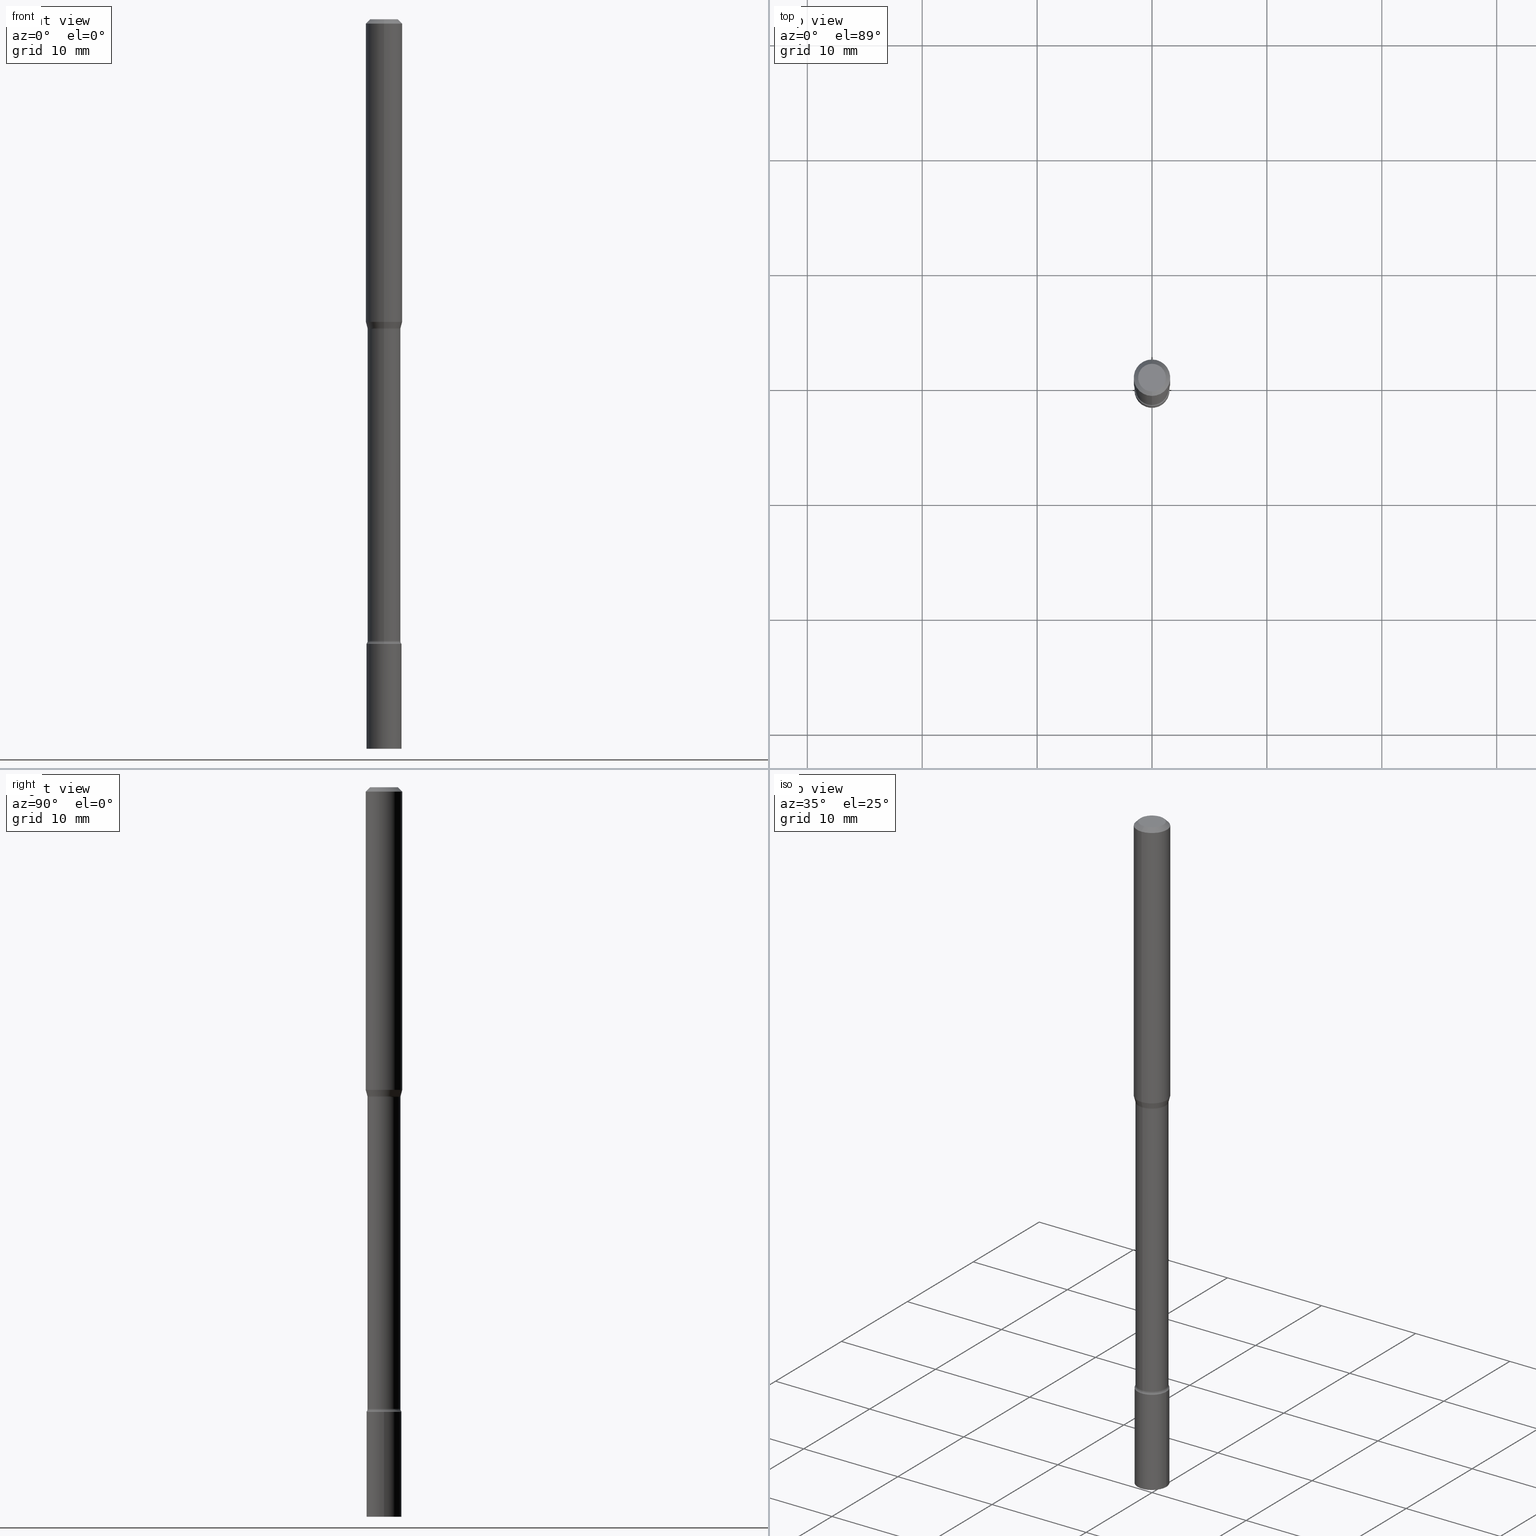
[diagram: canonical four-view strip — front | top / right | iso, engineering-drawing reading convention]
A machine part, canonical four-view strip (front | top / right | iso — engineering-drawing reading convention). The complete STEP part file that produces these views, byte-faithful:
ISO-10303-21;
HEADER;
FILE_DESCRIPTION (( 'STEP AP203' ),
    '1' );
FILE_NAME ('09404.STEP',
    '2024-03-08T23:46:08',
    ( '' ),
    ( '' ),
    'SwSTEP 2.0',
    'SolidWorks 2023',
    '' );
FILE_SCHEMA (( 'CONFIG_CONTROL_DESIGN' ));
ENDSEC;

DATA;
#1 = DIRECTION ( 'NONE',  ( -6.982962677686265922E-15, -1.000000000000000000, 2.421851058212999609E-15 ) ) ;
#2 = CIRCLE ( 'NONE', #297, 0.06250000000000000000 ) ;
#3 = CARTESIAN_POINT ( 'NONE',  ( -3.974081752709260600E-16, -0.05691111260566767555, -1.058092501787273321 ) ) ;
#4 = ORIENTED_EDGE ( 'NONE', *, *, #98, .T. ) ;
#5 = APPROVAL ( #193, 'UNSPECIFIED' ) ;
#6 = CARTESIAN_POINT ( 'NONE',  ( -0.05999999999999999778, -7.673911064660037924E-15, -2.140000000000000124 ) ) ;
#7 = VERTEX_POINT ( 'NONE', #384 ) ;
#8 = CARTESIAN_POINT ( 'NONE',  ( 7.070326966150357114E-46, -1.009475623099496898E-31, -2.891223959329334468E-17 ) ) ;
#9 = ORIENTED_EDGE ( 'NONE', *, *, #40, .F. ) ;
#10 = EDGE_CURVE ( 'NONE', #469, #104, #514, .T. ) ;
#11 = DIRECTION ( 'NONE',  ( -6.982962677686265922E-15, -1.000000000000000000, 2.400100673301878656E-15 ) ) ;
#12 = EDGE_LOOP ( 'NONE', ( #413, #180, #369, #170 ) ) ;
#13 = CIRCLE ( 'NONE', #146, 0.05640000000000008201 ) ;
#14 = DIRECTION ( 'NONE',  ( -2.445444235938896917E-29, 3.491516524834212024E-15, 1.000000000000000000 ) ) ;
#15 = ORIENTED_EDGE ( 'NONE', *, *, #465, .F. ) ;
#16 = DIRECTION ( 'NONE',  ( -6.982962677686265922E-15, -1.000000000000000000, 3.491516524834212024E-15 ) ) ;
#17 = CARTESIAN_POINT ( 'NONE',  ( 0.000000000000000000, 0.000000000000000000, 0.000000000000000000 ) ) ;
#18 = CARTESIAN_POINT ( 'NONE',  ( -4.985835351867734320E-16, -0.07140000000000369662, -1.061974787463811021 ) ) ;
#19 = VECTOR ( 'NONE', #274, 39.37007874015748143 ) ;
#20 = EDGE_CURVE ( 'NONE', #497, #224, #244, .T. ) ;
#21 = CARTESIAN_POINT ( 'NONE',  ( -4.189777606611237800E-16, -0.06000000000000750566, -2.139999999999999680 ) ) ;
#22 = EDGE_LOOP ( 'NONE', ( #443, #485, #92, #466 ) ) ;
#23 = CARTESIAN_POINT ( 'NONE',  ( -3.773273898774340269E-16, -0.04749999999999999362, 1.369347953363317225E-16 ) ) ;
#24 = VERTEX_POINT ( 'NONE', #423 ) ;
#25 = ADVANCED_FACE ( 'NONE', ( #265 ), #390, .F. ) ;
#26 = DIRECTION ( 'NONE',  ( -6.982962677686265922E-15, -1.000000000000000000, 2.400100673301878656E-15 ) ) ;
#27 = TOROIDAL_SURFACE ( 'NONE', #201, 0.07139999999999999125, 0.01499999999999998557 ) ;
#28 = AXIS2_PLACEMENT_3D ( 'NONE', #54, #14, #426 ) ;
#29 = DIRECTION ( 'NONE',  ( -6.982962677686266711E-15, -1.000000000000000000, 0.000000000000000000 ) ) ;
#30 = CALENDAR_DATE ( 2024, 8, 3 ) ;
#31 = DIRECTION ( 'NONE',  ( 2.438088387897960049E-29, -3.491481338843145188E-15, -1.000000000000000000 ) ) ;
#32 = EDGE_CURVE ( 'NONE', #489, #428, #461, .T. ) ;
#33 = PERSON_AND_ORGANIZATION ( #380, #246 ) ;
#34 = CARTESIAN_POINT ( 'NONE',  ( 6.113672015462842613E-29, -8.728703347107864943E-15, -2.500000000000000000 ) ) ;
#35 = PERSON_AND_ORGANIZATION ( #380, #246 ) ;
#36 = AXIS2_PLACEMENT_3D ( 'NONE', #383, #183, #93 ) ;
#37 = DIRECTION ( 'NONE',  ( -2.445468806185136597E-29, 3.491481338843145583E-15, 1.000000000000000000 ) ) ;
#38 = LINE ( 'NONE', #80, #219 ) ;
#39 = DIRECTION ( 'NONE',  ( -2.445468806185136597E-29, 3.491481338843145583E-15, 1.000000000000000000 ) ) ;
#40 = EDGE_CURVE ( 'NONE', #206, #326, #154, .T. ) ;
#41 = ORIENTED_EDGE ( 'NONE', *, *, #151, .F. ) ;
#42 = AXIS2_PLACEMENT_3D ( 'NONE', #488, #412, #1 ) ;
#43 = DIRECTION ( 'NONE',  ( -2.445444235938896917E-29, 3.491516524834212024E-15, 1.000000000000000000 ) ) ;
#44 = APPROVAL_PERSON_ORGANIZATION ( #391, #440, #148 ) ;
#45 = EDGE_LOOP ( 'NONE', ( #60, #203 ) ) ;
#46 = CARTESIAN_POINT ( 'NONE',  ( 5.233303245236192586E-29, -7.471770065124331886E-15, -2.140000000000000124 ) ) ;
#47 = ORIENTED_EDGE ( 'NONE', *, *, #299, .T. ) ;
#48 = EDGE_CURVE ( 'NONE', #457, #104, #502, .T. ) ;
#49 = CARTESIAN_POINT ( 'NONE',  ( 3.668166353908352803E-31, -5.237274787251328908E-17, -0.01500000000000003067 ) ) ;
#50 = EDGE_LOOP ( 'NONE', ( #487, #158, #47, #192 ) ) ;
#51 = DIRECTION ( 'NONE',  ( -2.445444235938896917E-29, 3.491516524834212024E-15, 1.000000000000000000 ) ) ;
#52 = VECTOR ( 'NONE', #153, 39.37007874015748143 ) ;
#53 = ORIENTED_EDGE ( 'NONE', *, *, #20, .T. ) ;
#54 = CARTESIAN_POINT ( 'NONE',  ( 2.536499105068069007E-29, -3.621521362220765207E-15, -1.037234490073830173 ) ) ;
#55 = ORIENTED_EDGE ( 'NONE', *, *, #195, .T. ) ;
#56 = PRODUCT_RELATED_PRODUCT_CATEGORY ( 'detail', '', ( #374 ) ) ;
#57 = DIRECTION ( 'NONE',  ( -2.445444235938896917E-29, 3.491516524834212024E-15, 1.000000000000000000 ) ) ;
#58 = MECHANICAL_CONTEXT ( 'NONE', #362, 'mechanical' ) ;
#59 = TOROIDAL_SURFACE ( 'NONE', #36, 0.07139999999999999125, 0.01499999999999998557 ) ;
#60 = ORIENTED_EDGE ( 'NONE', *, *, #352, .T. ) ;
#61 = CLOSED_SHELL ( 'NONE', ( #204, #458, #377, #114 ) ) ;
#62 = CONICAL_SURFACE ( 'NONE', #84, 0.06250000000000000000, 0.7853981633974483900 ) ;
#63 = PLANE ( 'NONE',  #363 ) ;
#64 = DIRECTION ( 'NONE',  ( -6.982962677686265922E-15, -1.000000000000000000, 4.553079989440439092E-15 ) ) ;
#65 = ADVANCED_FACE ( 'NONE', ( #143 ), #504, .T. ) ;
#66 = COORDINATED_UNIVERSAL_TIME_OFFSET ( 5, 0, .BEHIND. ) ;
#67 = CARTESIAN_POINT ( 'NONE',  ( 3.668166353908352803E-31, -5.237274787251328908E-17, -0.01500000000000003067 ) ) ;
#68 = CARTESIAN_POINT ( 'NONE',  ( 0.000000000000000000, 0.000000000000000000, 0.000000000000000000 ) ) ;
#69 = CIRCLE ( 'NONE', #425, 0.05999999999999999778 ) ;
#70 = PERSON_AND_ORGANIZATION_ROLE ( 'design_supplier' ) ;
#71 = CARTESIAN_POINT ( 'NONE',  ( 2.587506209585854859E-29, -3.694347454793438580E-15, -1.058092501787273321 ) ) ;
#72 = LINE ( 'NONE', #74, #52 ) ;
#73 = PERSON_AND_ORGANIZATION_ROLE ( 'creator' ) ;
#74 = CARTESIAN_POINT ( 'NONE',  ( -0.05999999999999999778, 4.263256414560600957E-16, -2.951361054152943413E-30 ) ) ;
#75 = CIRCLE ( 'NONE', #432, 0.05691111260566398405 ) ;
#76 = VECTOR ( 'NONE', #186, 39.37007874015748143 ) ;
#77 = CC_DESIGN_APPROVAL ( #440, ( #288 ) ) ;
#78 = FACE_OUTER_BOUND ( 'NONE', #22, .T. ) ;
#79 = EDGE_CURVE ( 'NONE', #371, #395, #75, .T. ) ;
#80 = CARTESIAN_POINT ( 'NONE',  ( 4.440892098500625669E-16, 0.06250000000000000000, -2.182197828021382515E-16 ) ) ;
#81 = ORIENTED_EDGE ( 'NONE', *, *, #10, .F. ) ;
#82 = DIRECTION ( 'NONE',  ( -6.982962677686265133E-15, -1.000000000000000000, 3.491516524834212024E-15 ) ) ;
#83 = ORIENTED_EDGE ( 'NONE', *, *, #48, .F. ) ;
#84 = AXIS2_PLACEMENT_3D ( 'NONE', #49, #486, #120 ) ;
#85 = CYLINDRICAL_SURFACE ( 'NONE', #179, 0.05999999999999999778 ) ;
#86 = APPROVAL_PERSON_ORGANIZATION ( #35, #161, #231 ) ;
#87 = ADVANCED_FACE ( 'NONE', ( #99 ), #379, .F. ) ;
#88 = ORIENTED_EDGE ( 'NONE', *, *, #367, .T. ) ;
#89 = DIRECTION ( 'NONE',  ( -2.445444235938896917E-29, 3.491516524834212024E-15, 1.000000000000000000 ) ) ;
#90 = ORIENTED_EDGE ( 'NONE', *, *, #181, .F. ) ;
#91 = CARTESIAN_POINT ( 'NONE',  ( 5.073275133327374044E-16, 0.07139999999999628588, -1.061974787463811465 ) ) ;
#92 = ORIENTED_EDGE ( 'NONE', *, *, #515, .T. ) ;
#93 = DIRECTION ( 'NONE',  ( -6.982962677686265922E-15, -1.000000000000000000, 3.491516524834212024E-15 ) ) ;
#94 = CLOSED_SHELL ( 'NONE', ( #210, #403, #260, #359, #251, #338, #233, #65, #176, #435, #87, #25, #217, #479 ) ) ;
#95 = AXIS2_PLACEMENT_3D ( 'NONE', #108, #118, #400 ) ;
#96 = DIRECTION ( 'NONE',  ( -2.445444235938896917E-29, 3.491516524834212024E-15, 1.000000000000000000 ) ) ;
#97 = CIRCLE ( 'NONE', #28, 0.06250000000000000000 ) ;
#98 = EDGE_CURVE ( 'NONE', #395, #224, #475, .T. ) ;
#99 = FACE_OUTER_BOUND ( 'NONE', #248, .T. ) ;
#100 = DIRECTION ( 'NONE',  ( 1.000000000000000000, -6.982962677686265922E-15, 4.876176775795935793E-29 ) ) ;
#101 = ORIENTED_EDGE ( 'NONE', *, *, #32, .T. ) ;
#102 = EDGE_LOOP ( 'NONE', ( #282, #407, #483, #101 ) ) ;
#103 = DIRECTION ( 'NONE',  ( -2.438088387897960049E-29, 3.491481338843145188E-15, 1.000000000000000000 ) ) ;
#104 = VERTEX_POINT ( 'NONE', #157 ) ;
#105 = EDGE_CURVE ( 'NONE', #345, #497, #271, .T. ) ;
#106 = AXIS2_PLACEMENT_3D ( 'NONE', #71, #397, #26 ) ;
#107 = DIRECTION ( 'NONE',  ( 1.000000000000000000, -6.982962677686251722E-15, 0.000000000000000000 ) ) ;
#108 = CARTESIAN_POINT ( 'NONE',  ( 0.000000000000000000, 0.000000000000000000, 0.000000000000000000 ) ) ;
#109 = SECURITY_CLASSIFICATION_LEVEL ( 'unclassified' ) ;
#110 = CYLINDRICAL_SURFACE ( 'NONE', #173, 0.06250000000000000000 ) ;
#111 = AXIS2_PLACEMENT_3D ( 'NONE', #18, #191, #29 ) ;
#112 = LOCAL_TIME ( 18, 46, 8.000000000000000000, #159 ) ;
#113 = DATE_AND_TIME ( #511, #280 ) ;
#114 = ADVANCED_FACE ( 'NONE', ( #149 ), #317, .T. ) ;
#115 = CARTESIAN_POINT ( 'NONE',  ( 4.007461029686966931E-16, 0.05640000000000004038, -1.969215320006496894E-16 ) ) ;
#116 = PERSON_AND_ORGANIZATION_ROLE ( 'classification_officer' ) ;
#117 = CARTESIAN_POINT ( 'NONE',  ( 4.043777764598219451E-16, 0.05691111260566028562, -1.058092501787273543 ) ) ;
#118 = DIRECTION ( 'NONE',  ( -2.445444235938896917E-29, 3.491516524834212024E-15, 1.000000000000000000 ) ) ;
#119 = EDGE_CURVE ( 'NONE', #375, #469, #507, .T. ) ;
#120 = DIRECTION ( 'NONE',  ( 6.982962677686265922E-15, 1.000000000000000000, -3.483106191921935554E-15 ) ) ;
#121 = ORIENTED_EDGE ( 'NONE', *, *, #142, .T. ) ;
#122 = DIRECTION ( 'NONE',  ( 1.000000000000000000, -6.982962677686267499E-15, 4.876176775795936353E-29 ) ) ;
#123 = EDGE_LOOP ( 'NONE', ( #83, #500, #361, #137 ) ) ;
#124 = EDGE_CURVE ( 'NONE', #495, #224, #150, .T. ) ;
#125 = CARTESIAN_POINT ( 'NONE',  ( 5.233250664909240003E-29, -7.471845363145214624E-15, -2.140000000000000124 ) ) ;
#126 = ORIENTED_EDGE ( 'NONE', *, *, #105, .F. ) ;
#127 = AXIS2_PLACEMENT_3D ( 'NONE', #46, #198, #290 ) ;
#128 = DIRECTION ( 'NONE',  ( -2.445444235938896917E-29, 3.491516524834212024E-15, 1.000000000000000000 ) ) ;
#129 = ORIENTED_EDGE ( 'NONE', *, *, #309, .F. ) ;
#130 = CARTESIAN_POINT ( 'NONE',  ( 3.840629472727447874E-16, 0.04749999999999999362, -1.947592745229184119E-16 ) ) ;
#131 = ORIENTED_EDGE ( 'NONE', *, *, #181, .T. ) ;
#132 = CARTESIAN_POINT ( 'NONE',  ( 2.587506209585854859E-29, -3.694347454793438580E-15, -1.058092501787273321 ) ) ;
#133 = EDGE_LOOP ( 'NONE', ( #243, #303, #53, #240 ) ) ;
#134 = EDGE_CURVE ( 'NONE', #250, #104, #512, .T. ) ;
#135 = DIMENSIONAL_EXPONENTS ( 1.000000000000000000, 0.000000000000000000, 0.000000000000000000, 0.000000000000000000, 0.000000000000000000, 0.000000000000000000, 0.000000000000000000 ) ;
#136 = CIRCLE ( 'NONE', #498, 0.01499999999999998557 ) ;
#137 = ORIENTED_EDGE ( 'NONE', *, *, #10, .T. ) ;
#138 =( LENGTH_UNIT ( ) NAMED_UNIT ( * ) SI_UNIT ( $, .METRE. ) );
#139 = ORIENTED_EDGE ( 'NONE', *, *, #275, .F. ) ;
#140 = ORIENTED_EDGE ( 'NONE', *, *, #465, .T. ) ;
#141 = CARTESIAN_POINT ( 'NONE',  ( 5.209410405442243342E-29, -7.437807105939404546E-15, -2.130251153914437090 ) ) ;
#142 = EDGE_CURVE ( 'NONE', #206, #264, #72, .T. ) ;
#143 = FACE_OUTER_BOUND ( 'NONE', #422, .T. ) ;
#144 = DIRECTION ( 'NONE',  ( -6.982962677686265922E-15, -1.000000000000000000, 2.400100673301878656E-15 ) ) ;
#145 = DIRECTION ( 'NONE',  ( -6.982962677686265922E-15, -1.000000000000000000, 3.491516524834212024E-15 ) ) ;
#146 = AXIS2_PLACEMENT_3D ( 'NONE', #365, #169, #358 ) ;
#147 = AXIS2_PLACEMENT_3D ( 'NONE', #376, #103, #100 ) ;
#148 = APPROVAL_ROLE ( '' ) ;
#149 = FACE_OUTER_BOUND ( 'NONE', #163, .T. ) ;
#150 = LINE ( 'NONE', #351, #165 ) ;
#151 = EDGE_CURVE ( 'NONE', #250, #24, #381, .T. ) ;
#152 = CALENDAR_DATE ( 2024, 8, 3 ) ;
#153 = DIRECTION ( 'NONE',  ( -2.445468806185136877E-29, 3.491481338843145188E-15, 1.000000000000000000 ) ) ;
#154 = CIRCLE ( 'NONE', #226, 0.05999999999999999778 ) ;
#155 = CIRCLE ( 'NONE', #209, 0.05999999999999999778 ) ;
#156 = CIRCLE ( 'NONE', #364, 0.05640000000000008201 ) ;
#157 = CARTESIAN_POINT ( 'NONE',  ( -4.364351673553912750E-16, -0.06250000000000005551, -0.01499999999999981209 ) ) ;
#158 = ORIENTED_EDGE ( 'NONE', *, *, #40, .T. ) ;
#159 = COORDINATED_UNIVERSAL_TIME_OFFSET ( 5, 0, .BEHIND. ) ;
#160 = CARTESIAN_POINT ( 'NONE',  ( 2.536499105068069007E-29, -3.621521362220765207E-15, -1.037234490073830173 ) ) ;
#161 = APPROVAL ( #433, 'UNSPECIFIED' ) ;
#162 = FACE_OUTER_BOUND ( 'NONE', #341, .T. ) ;
#163 = EDGE_LOOP ( 'NONE', ( #90, #9 ) ) ;
#164 = AXIS2_PLACEMENT_3D ( 'NONE', #460, #96, #145 ) ;
#165 = VECTOR ( 'NONE', #319, 39.37007874015748143 ) ;
#166 = CC_DESIGN_APPROVAL ( #161, ( #242 ) ) ;
#167 = FACE_OUTER_BOUND ( 'NONE', #455, .T. ) ;
#168 = ORIENTED_EDGE ( 'NONE', *, *, #508, .T. ) ;
#169 = DIRECTION ( 'NONE',  ( -2.445444235938896917E-29, 3.491516524834212024E-15, 1.000000000000000000 ) ) ;
#170 = ORIENTED_EDGE ( 'NONE', *, *, #134, .F. ) ;
#171 = CARTESIAN_POINT ( 'NONE',  ( 2.587506209585854859E-29, -3.694347454793438580E-15, -1.058092501787273321 ) ) ;
#172 = EDGE_LOOP ( 'NONE', ( #15, #88, #182, #139 ) ) ;
#173 = AXIS2_PLACEMENT_3D ( 'NONE', #68, #227, #349 ) ;
#174 = CARTESIAN_POINT ( 'NONE',  ( 5.209462746237647655E-29, -7.437732150941334184E-15, -2.130251153914437090 ) ) ;
#175 = ORIENTED_EDGE ( 'NONE', *, *, #134, .T. ) ;
#176 = ADVANCED_FACE ( 'NONE', ( #311 ), #279, .T. ) ;
#177 = ORIENTED_EDGE ( 'NONE', *, *, #119, .F. ) ;
#178 = CARTESIAN_POINT ( 'NONE',  ( 2.587506209585854859E-29, -3.694347454793438580E-15, -1.058092501787273321 ) ) ;
#179 = AXIS2_PLACEMENT_3D ( 'NONE', #456, #39, #122 ) ;
#180 = ORIENTED_EDGE ( 'NONE', *, *, #266, .T. ) ;
#181 = EDGE_CURVE ( 'NONE', #326, #206, #155, .T. ) ;
#182 = ORIENTED_EDGE ( 'NONE', *, *, #424, .T. ) ;
#183 = DIRECTION ( 'NONE',  ( -2.445444235938896917E-29, 3.491516524834212024E-15, 1.000000000000000000 ) ) ;
#184 = CARTESIAN_POINT ( 'NONE',  ( 5.233250664909240003E-29, -7.471845363145214624E-15, -2.140000000000000124 ) ) ;
#185 = DATE_TIME_ROLE ( 'creation_date' ) ;
#186 = DIRECTION ( 'NONE',  ( -2.445444235938896917E-29, 3.491516524834212024E-15, 1.000000000000000000 ) ) ;
#187 = CIRCLE ( 'NONE', #236, 0.05999999999999999778 ) ;
#188 = CC_DESIGN_SECURITY_CLASSIFICATION ( #228, ( #288 ) ) ;
#189 = DIRECTION ( 'NONE',  ( -2.445444235938896917E-29, 3.491516524834212024E-15, 1.000000000000000000 ) ) ;
#190 = CC_DESIGN_DATE_AND_TIME_ASSIGNMENT ( #399, #474, ( #228 ) ) ;
#191 = DIRECTION ( 'NONE',  ( -1.000000000000000000, 6.982962677686265922E-15, -4.883557194083112340E-29 ) ) ;
#192 = ORIENTED_EDGE ( 'NONE', *, *, #291, .F. ) ;
#193 = APPROVAL_STATUS ( 'not_yet_approved' ) ;
#194 = DIRECTION ( 'NONE',  ( 1.839019923739594004E-15, 0.2588190451025240701, 0.9659258262890673130 ) ) ;
#195 = EDGE_CURVE ( 'NONE', #371, #24, #394, .T. ) ;
#196 = PERSON_AND_ORGANIZATION ( #380, #246 ) ;
#197 = DIRECTION ( 'NONE',  ( -2.445444235938896917E-29, 3.491516524834212024E-15, 1.000000000000000000 ) ) ;
#198 = DIRECTION ( 'NONE',  ( -2.445468806185136597E-29, 3.491481338843145583E-15, 1.000000000000000000 ) ) ;
#199 = ORIENTED_EDGE ( 'NONE', *, *, #124, .T. ) ;
#200 = AXIS2_PLACEMENT_3D ( 'NONE', #258, #57, #216 ) ;
#201 = AXIS2_PLACEMENT_3D ( 'NONE', #389, #439, #472 ) ;
#202 = DIRECTION ( 'NONE',  ( -2.445468806185136597E-29, 3.491481338843145583E-15, 1.000000000000000000 ) ) ;
#203 = ORIENTED_EDGE ( 'NONE', *, *, #309, .T. ) ;
#204 = ADVANCED_FACE ( 'NONE', ( #313 ), #354, .T. ) ;
#205 = CYLINDRICAL_SURFACE ( 'NONE', #263, 0.05640000000000004038 ) ;
#206 = VERTEX_POINT ( 'NONE', #518 ) ;
#207 = CARTESIAN_POINT ( 'NONE',  ( 5.233303245236192586E-29, -7.471770065124331886E-15, -2.140000000000000124 ) ) ;
#208 = ORIENTED_EDGE ( 'NONE', *, *, #124, .F. ) ;
#209 = AXIS2_PLACEMENT_3D ( 'NONE', #34, #37, #398 ) ;
#210 = ADVANCED_FACE ( 'NONE', ( #277 ), #27, .F. ) ;
#211 = CIRCLE ( 'NONE', #272, 0.04749999999999999362 ) ;
#212 = EDGE_LOOP ( 'NONE', ( #336, #287, #4, #285 ) ) ;
#213 = CARTESIAN_POINT ( 'NONE',  ( -3.974081752709260600E-16, -0.05691111260566767555, -1.058092501787273321 ) ) ;
#214 = DIRECTION ( 'NONE',  ( -6.982962677686265922E-15, -1.000000000000000000, 3.483106191921935554E-15 ) ) ;
#215 = CARTESIAN_POINT ( 'NONE',  ( 4.263256414561126536E-16, 0.05999999999999256622, -2.140000000000000568 ) ) ;
#216 = DIRECTION ( 'NONE',  ( -6.982962677686265922E-15, -1.000000000000000000, 3.491516524834212024E-15 ) ) ;
#217 = ADVANCED_FACE ( 'NONE', ( #235 ), #520, .T. ) ;
#218 = FACE_OUTER_BOUND ( 'NONE', #45, .T. ) ;
#219 = VECTOR ( 'NONE', #360, 39.37007874015748143 ) ;
#220 = CARTESIAN_POINT ( 'NONE',  ( -4.287811248607203282E-16, -0.06250000000000005551, -0.01499999999999981209 ) ) ;
#221 = DIRECTION ( 'NONE',  ( 1.000000000000000000, -7.105427357601001070E-15, 4.926315939446195710E-29 ) ) ;
#222 = EDGE_LOOP ( 'NONE', ( #129, #334, #327, #177 ) ) ;
#223 = PERSON_AND_ORGANIZATION_ROLE ( 'creator' ) ;
#224 = VERTEX_POINT ( 'NONE', #441 ) ;
#225 = CC_DESIGN_DATE_AND_TIME_ASSIGNMENT ( #269, #185, ( #242 ) ) ;
#226 = AXIS2_PLACEMENT_3D ( 'NONE', #257, #467, #107 ) ;
#227 = DIRECTION ( 'NONE',  ( -2.445444235938896917E-29, 3.491516524834212024E-15, 1.000000000000000000 ) ) ;
#228 = SECURITY_CLASSIFICATION ( '', '', #109 ) ;
#229 = PERSON_AND_ORGANIZATION ( #380, #246 ) ;
#230 = FACE_OUTER_BOUND ( 'NONE', #172, .T. ) ;
#231 = APPROVAL_ROLE ( '' ) ;
#232 = DIRECTION ( 'NONE',  ( 6.982962677686265922E-15, 1.000000000000000000, -3.483106191921935554E-15 ) ) ;
#233 = ADVANCED_FACE ( 'NONE', ( #78 ), #331, .T. ) ;
#234 = APPLICATION_PROTOCOL_DEFINITION ( 'international standard', 'config_control_design', 1994, #254 ) ;
#235 = FACE_OUTER_BOUND ( 'NONE', #302, .T. ) ;
#236 = AXIS2_PLACEMENT_3D ( 'NONE', #207, #202, #490 ) ;
#237 = VECTOR ( 'NONE', #496, 39.37007874015748854 ) ;
#238 = DIRECTION ( 'NONE',  ( -6.982962677686267499E-15, -1.000000000000000000, 0.000000000000000000 ) ) ;
#239 = DIRECTION ( 'NONE',  ( 1.000000000000000000, -7.105427357601001070E-15, 4.926315939446195710E-29 ) ) ;
#240 = ORIENTED_EDGE ( 'NONE', *, *, #98, .F. ) ;
#241 = LINE ( 'NONE', #446, #323 ) ;
#242 = PRODUCT_DEFINITION ( 'UNKNOWN', '', #288, #405 ) ;
#243 = ORIENTED_EDGE ( 'NONE', *, *, #79, .F. ) ;
#244 = CIRCLE ( 'NONE', #305, 0.05639999999999999181 ) ;
#245 = CIRCLE ( 'NONE', #127, 0.05999999999999999778 ) ;
#246 = ORGANIZATION ( 'UNSPECIFIED', 'UNSPECIFIED', '' ) ;
#247 = CARTESIAN_POINT ( 'NONE',  ( -4.985835351867480899E-16, -0.07140000000000755465, -2.130251153914436646 ) ) ;
#248 = EDGE_LOOP ( 'NONE', ( #449, #417 ) ) ;
#249 = DIRECTION ( 'NONE',  ( -6.982962677686265922E-15, -1.000000000000000000, 4.553079989440439092E-15 ) ) ;
#250 = VERTEX_POINT ( 'NONE', #268 ) ;
#251 = ADVANCED_FACE ( 'NONE', ( #431 ), #110, .T. ) ;
#252 = FACE_OUTER_BOUND ( 'NONE', #322, .T. ) ;
#253 = ORIENTED_EDGE ( 'NONE', *, *, #20, .F. ) ;
#254 = APPLICATION_CONTEXT ( 'configuration controlled 3d designs of mechanical parts and assemblies' ) ;
#255 = VECTOR ( 'NONE', #348, 39.37007874015748143 ) ;
#256 = CARTESIAN_POINT ( 'NONE',  ( -3.938390950214538328E-16, -0.05640000000000751357, -2.130251153914436646 ) ) ;
#257 = CARTESIAN_POINT ( 'NONE',  ( 6.113672015462842613E-29, -8.728703347107864943E-15, -2.500000000000000000 ) ) ;
#258 = CARTESIAN_POINT ( 'NONE',  ( 4.189777606612283041E-16, 0.05999999999999253153, -2.140000000000000568 ) ) ;
#259 = LINE ( 'NONE', #213, #237 ) ;
#260 = ADVANCED_FACE ( 'NONE', ( #230 ), #481, .F. ) ;
#261 = DIRECTION ( 'NONE',  ( -6.982962677686265922E-15, -1.000000000000000000, 2.421851058212999609E-15 ) ) ;
#262 = PLANE ( 'NONE',  #147 ) ;
#263 = AXIS2_PLACEMENT_3D ( 'NONE', #325, #484, #82 ) ;
#264 = VERTEX_POINT ( 'NONE', #6 ) ;
#265 = FACE_OUTER_BOUND ( 'NONE', #102, .T. ) ;
#266 = EDGE_CURVE ( 'NONE', #24, #469, #38, .T. ) ;
#267 = MANIFOLD_SOLID_BREP ( 'Body-Move/Copy2[1]', #61 ) ;
#268 = CARTESIAN_POINT ( 'NONE',  ( -4.364351673553663766E-16, -0.06250000000000363598, -1.037234490073829951 ) ) ;
#269 = DATE_AND_TIME ( #152, #112 ) ;
#270 = AXIS2_PLACEMENT_3D ( 'NONE', #184, #344, #64 ) ;
#271 = LINE ( 'NONE', #115, #255 ) ;
#272 = AXIS2_PLACEMENT_3D ( 'NONE', #8, #197, #370 ) ;
#273 = SHAPE_DEFINITION_REPRESENTATION ( #427, #452 ) ;
#274 = DIRECTION ( 'NONE',  ( 4.937700262164548042E-15, 0.7071067811865451302, -0.7071067811865499042 ) ) ;
#275 = EDGE_CURVE ( 'NONE', #495, #489, #468, .T. ) ;
#276 = APPROVAL_DATE_TIME ( #429, #440 ) ;
#277 = FACE_OUTER_BOUND ( 'NONE', #133, .T. ) ;
#278 = DIRECTION ( 'NONE',  ( 2.445444235938896917E-29, -3.491516524834212024E-15, -1.000000000000000000 ) ) ;
#279 = CONICAL_SURFACE ( 'NONE', #434, 0.06250000000000000000, 0.7853981633974483900 ) ;
#280 = LOCAL_TIME ( 18, 46, 8.000000000000000000, #516 ) ;
#281 = DIRECTION ( 'NONE',  ( -2.445444235938896917E-29, 3.491516524834212024E-15, 1.000000000000000000 ) ) ;
#282 = ORIENTED_EDGE ( 'NONE', *, *, #367, .F. ) ;
#283 = CC_DESIGN_PERSON_AND_ORGANIZATION_ASSIGNMENT ( #196, #73, ( #288 ) ) ;
#284 = DIRECTION ( 'NONE',  ( -6.982962677686266711E-15, -1.000000000000000000, 3.491516524834212419E-15 ) ) ;
#285 = ORIENTED_EDGE ( 'NONE', *, *, #314, .T. ) ;
#286 = DIRECTION ( 'NONE',  ( -2.445468806185136877E-29, 3.491481338843145188E-15, 1.000000000000000000 ) ) ;
#287 = ORIENTED_EDGE ( 'NONE', *, *, #471, .F. ) ;
#288 = PRODUCT_DEFINITION_FORMATION_WITH_SPECIFIED_SOURCE ( 'ANY', '', #374, .NOT_KNOWN. ) ;
#289 = CIRCLE ( 'NONE', #392, 0.04749999999999999362 ) ;
#290 = DIRECTION ( 'NONE',  ( 1.000000000000000000, -6.982962677686268288E-15, 0.000000000000000000 ) ) ;
#291 = EDGE_CURVE ( 'NONE', #264, #7, #187, .T. ) ;
#292 = ORIENTED_EDGE ( 'NONE', *, *, #385, .T. ) ;
#293 = FACE_OUTER_BOUND ( 'NONE', #50, .T. ) ;
#294 = ORIENTED_EDGE ( 'NONE', *, *, #299, .F. ) ;
#295 = CARTESIAN_POINT ( 'NONE',  ( 3.316907271900976096E-16, 0.04749999999999999362, -1.803031547262717396E-16 ) ) ;
#296 = DIRECTION ( 'NONE',  ( -2.445444235938896917E-29, 3.491516524834212024E-15, 1.000000000000000000 ) ) ;
#297 = AXIS2_PLACEMENT_3D ( 'NONE', #408, #43, #368 ) ;
#298 = ORIENTED_EDGE ( 'NONE', *, *, #291, .T. ) ;
#299 = EDGE_CURVE ( 'NONE', #326, #7, #241, .T. ) ;
#300 = ORIENTED_EDGE ( 'NONE', *, *, #314, .F. ) ;
#301 = DIRECTION ( 'NONE',  ( 7.105427357600997914E-15, 1.000000000000000000, 0.000000000000000000 ) ) ;
#302 = EDGE_LOOP ( 'NONE', ( #126, #140, #199, #253 ) ) ;
#303 = ORIENTED_EDGE ( 'NONE', *, *, #448, .T. ) ;
#304 =( CONVERSION_BASED_UNIT ( 'INCH', #373 ) LENGTH_UNIT ( ) NAMED_UNIT ( #135 ) );
#305 = AXIS2_PLACEMENT_3D ( 'NONE', #307, #387, #261 ) ;
#306 = AXIS2_PLACEMENT_3D ( 'NONE', #247, #442, #238 ) ;
#307 = CARTESIAN_POINT ( 'NONE',  ( 2.597000122715812178E-29, -3.707902519387197566E-15, -1.061974787463811243 ) ) ;
#308 = LOCAL_TIME ( 18, 46, 8.000000000000000000, #346 ) ;
#309 = EDGE_CURVE ( 'NONE', #457, #375, #211, .T. ) ;
#310 = CALENDAR_DATE ( 2024, 8, 3 ) ;
#311 = FACE_OUTER_BOUND ( 'NONE', #123, .T. ) ;
#312 = APPROVAL_DATE_TIME ( #113, #5 ) ;
#313 = FACE_OUTER_BOUND ( 'NONE', #415, .T. ) ;
#314 = EDGE_CURVE ( 'NONE', #224, #497, #517, .T. ) ;
#315 = DATE_AND_TIME ( #396, #451 ) ;
#316 = VECTOR ( 'NONE', #430, 39.37007874015748143 ) ;
#317 = PLANE ( 'NONE',  #339 ) ;
#318 = AXIS2_PLACEMENT_3D ( 'NONE', #470, #478, #510 ) ;
#319 = DIRECTION ( 'NONE',  ( -2.445444235938896917E-29, 3.491516524834212024E-15, 1.000000000000000000 ) ) ;
#320 = CARTESIAN_POINT ( 'NONE',  ( -4.364351673553916201E-16, -0.06250000000000000000, 2.182197828021382515E-16 ) ) ;
#321 = DIRECTION ( 'NONE',  ( -2.445444235938896917E-29, 3.491516524834212024E-15, 1.000000000000000000 ) ) ;
#322 = EDGE_LOOP ( 'NONE', ( #292, #298 ) ) ;
#323 = VECTOR ( 'NONE', #286, 39.37007874015748143 ) ;
#324 = CC_DESIGN_PERSON_AND_ORGANIZATION_ASSIGNMENT ( #33, #223, ( #242 ) ) ;
#325 = CARTESIAN_POINT ( 'NONE',  ( 0.000000000000000000, 0.000000000000000000, 0.000000000000000000 ) ) ;
#326 = VERTEX_POINT ( 'NONE', #406 ) ;
#327 = ORIENTED_EDGE ( 'NONE', *, *, #409, .T. ) ;
#328 = EDGE_CURVE ( 'NONE', #495, #345, #13, .T. ) ;
#329 = CARTESIAN_POINT ( 'NONE',  ( 4.242334931549550257E-16, 0.05691111260566028562, -1.058092501787273543 ) ) ;
#330 = ORIENTED_EDGE ( 'NONE', *, *, #328, .T. ) ;
#331 = CONICAL_SURFACE ( 'NONE', #106, 0.05691111260566398405, 0.2617993877991494078 ) ;
#332 = CC_DESIGN_APPROVAL ( #5, ( #228 ) ) ;
#333 = CARTESIAN_POINT ( 'NONE',  ( 5.073275133327644228E-16, 0.07139999999999267766, -2.130251153914437090 ) ) ;
#334 = ORIENTED_EDGE ( 'NONE', *, *, #48, .T. ) ;
#335 =( NAMED_UNIT ( * ) SI_UNIT ( $, .STERADIAN. ) SOLID_ANGLE_UNIT ( ) );
#336 = ORIENTED_EDGE ( 'NONE', *, *, #448, .F. ) ;
#337 = DIRECTION ( 'NONE',  ( -2.445444235938896917E-29, 3.491516524834212024E-15, 1.000000000000000000 ) ) ;
#338 = ADVANCED_FACE ( 'NONE', ( #162 ), #506, .T. ) ;
#339 = AXIS2_PLACEMENT_3D ( 'NONE', #437, #31, #480 ) ;
#340 = CARTESIAN_POINT ( 'NONE',  ( 4.440892098500881555E-16, 0.06249999999999995837, -0.01500000000000024751 ) ) ;
#341 = EDGE_LOOP ( 'NONE', ( #410, #55, #41, #445 ) ) ;
#342 = ORIENTED_EDGE ( 'NONE', *, *, #385, .F. ) ;
#343 = CC_DESIGN_PERSON_AND_ORGANIZATION_ASSIGNMENT ( #388, #70, ( #288 ) ) ;
#344 = DIRECTION ( 'NONE',  ( -2.445444235938896917E-29, 3.491516524834212024E-15, 1.000000000000000000 ) ) ;
#345 = VERTEX_POINT ( 'NONE', #414 ) ;
#346 = COORDINATED_UNIVERSAL_TIME_OFFSET ( 5, 0, .BEHIND. ) ;
#347 = VECTOR ( 'NONE', #194, 39.37007874015748854 ) ;
#348 = DIRECTION ( 'NONE',  ( -2.445444235938896917E-29, 3.491516524834212024E-15, 1.000000000000000000 ) ) ;
#349 = DIRECTION ( 'NONE',  ( -6.982962677686265922E-15, -1.000000000000000000, 3.491516524834212024E-15 ) ) ;
#350 = PERSON_AND_ORGANIZATION_ROLE ( 'design_owner' ) ;
#351 = CARTESIAN_POINT ( 'NONE',  ( -3.938390950215056511E-16, -0.05640000000000004038, 1.969215320006496894E-16 ) ) ;
#352 = EDGE_CURVE ( 'NONE', #375, #457, #289, .T. ) ;
#353 = APPROVAL_DATE_TIME ( #315, #161 ) ;
#354 = CYLINDRICAL_SURFACE ( 'NONE', #318, 0.05999999999999999778 ) ;
#355 = CIRCLE ( 'NONE', #505, 0.01500000000000002720 ) ;
#356 = COORDINATED_UNIVERSAL_TIME_OFFSET ( 5, 0, .BEHIND. ) ;
#357 = CARTESIAN_POINT ( 'NONE',  ( 3.668166353908352803E-31, -5.237274787251328908E-17, -0.01500000000000003067 ) ) ;
#358 = DIRECTION ( 'NONE',  ( -6.982962677686265133E-15, -1.000000000000000000, 4.843702116425991330E-15 ) ) ;
#359 = ADVANCED_FACE ( 'NONE', ( #482 ), #62, .T. ) ;
#360 = DIRECTION ( 'NONE',  ( -2.445444235938896917E-29, 3.491516524834212024E-15, 1.000000000000000000 ) ) ;
#361 = ORIENTED_EDGE ( 'NONE', *, *, #119, .T. ) ;
#362 = APPLICATION_CONTEXT ( 'configuration controlled 3d designs of mechanical parts and assemblies' ) ;
#363 = AXIS2_PLACEMENT_3D ( 'NONE', #295, #494, #459 ) ;
#364 = AXIS2_PLACEMENT_3D ( 'NONE', #141, #51, #462 ) ;
#365 = CARTESIAN_POINT ( 'NONE',  ( 5.209410405442243342E-29, -7.437807105939404546E-15, -2.130251153914437090 ) ) ;
#366 = ORIENTED_EDGE ( 'NONE', *, *, #105, .T. ) ;
#367 = EDGE_CURVE ( 'NONE', #345, #428, #355, .T. ) ;
#368 = DIRECTION ( 'NONE',  ( -6.982962677686265922E-15, -1.000000000000000000, 3.483106191921935554E-15 ) ) ;
#369 = ORIENTED_EDGE ( 'NONE', *, *, #409, .F. ) ;
#370 = DIRECTION ( 'NONE',  ( -6.982962677686266711E-15, -1.000000000000000000, 3.491516524834212419E-15 ) ) ;
#371 = VERTEX_POINT ( 'NONE', #329 ) ;
#372 = AXIS2_PLACEMENT_3D ( 'NONE', #420, #378, #16 ) ;
#373 = LENGTH_MEASURE_WITH_UNIT ( LENGTH_MEASURE( 0.02539999999999999897 ), #138 );
#374 = PRODUCT ( '09404', '09404', '', ( #58 ) ) ;
#375 = VERTEX_POINT ( 'NONE', #130 ) ;
#376 = CARTESIAN_POINT ( 'NONE',  ( 5.233303245236192586E-29, -7.471770065124331886E-15, -2.140000000000000124 ) ) ;
#377 = ADVANCED_FACE ( 'NONE', ( #293 ), #85, .T. ) ;
#378 = DIRECTION ( 'NONE',  ( -2.445444235938896917E-29, 3.491516524834212024E-15, 1.000000000000000000 ) ) ;
#379 = PLANE ( 'NONE',  #200 ) ;
#380 = PERSON ( 'UNSPECIFIED', 'UNSPECIFIED', 'UNSPECIFIED', ('UNSPECIFIED'), ('UNSPECIFIED'), ('UNSPECIFIED') ) ;
#381 = CIRCLE ( 'NONE', #401, 0.06250000000000000000 ) ;
#382 = LOCAL_TIME ( 18, 46, 8.000000000000000000, #356 ) ;
#383 = CARTESIAN_POINT ( 'NONE',  ( 2.597026215697840681E-29, -3.707865152751812807E-15, -1.061974787463811243 ) ) ;
#384 = CARTESIAN_POINT ( 'NONE',  ( 0.05999999999999999778, -7.890747825785508520E-15, -2.140000000000000124 ) ) ;
#385 = EDGE_CURVE ( 'NONE', #7, #264, #245, .T. ) ;
#386 = FACE_OUTER_BOUND ( 'NONE', #212, .T. ) ;
#387 = DIRECTION ( 'NONE',  ( -2.445444235938896917E-29, 3.491516524834212024E-15, 1.000000000000000000 ) ) ;
#388 = PERSON_AND_ORGANIZATION ( #380, #246 ) ;
#389 = CARTESIAN_POINT ( 'NONE',  ( 2.597026215697840681E-29, -3.707865152751812807E-15, -1.061974787463811243 ) ) ;
#390 = TOROIDAL_SURFACE ( 'NONE', #164, 0.07140000000000011615, 0.01500000000000003414 ) ;
#391 = PERSON_AND_ORGANIZATION ( #380, #246 ) ;
#392 = AXIS2_PLACEMENT_3D ( 'NONE', #444, #128, #284 ) ;
#393 =( GEOMETRIC_REPRESENTATION_CONTEXT ( 3 ) GLOBAL_UNCERTAINTY_ASSIGNED_CONTEXT ( ( #493 ) ) GLOBAL_UNIT_ASSIGNED_CONTEXT ( ( #304, #503, #335 ) ) REPRESENTATION_CONTEXT ( 'NONE', 'WORKASPACE' ) );
#394 = LINE ( 'NONE', #117, #347 ) ;
#395 = VERTEX_POINT ( 'NONE', #3 ) ;
#396 = CALENDAR_DATE ( 2024, 8, 3 ) ;
#397 = DIRECTION ( 'NONE',  ( -2.445444235938896917E-29, 3.491516524834212024E-15, 1.000000000000000000 ) ) ;
#398 = DIRECTION ( 'NONE',  ( 1.000000000000000000, -6.982962677686251722E-15, 0.000000000000000000 ) ) ;
#399 = DATE_AND_TIME ( #30, #382 ) ;
#400 = DIRECTION ( 'NONE',  ( -6.982962677686265133E-15, -1.000000000000000000, 3.491516524834212024E-15 ) ) ;
#401 = AXIS2_PLACEMENT_3D ( 'NONE', #160, #189, #436 ) ;
#402 = AXIS2_PLACEMENT_3D ( 'NONE', #132, #416, #144 ) ;
#403 = ADVANCED_FACE ( 'NONE', ( #167 ), #205, .T. ) ;
#404 = DIRECTION ( 'NONE',  ( -6.982962677686265922E-15, -1.000000000000000000, 3.491516524834212024E-15 ) ) ;
#405 = DESIGN_CONTEXT ( 'detailed design', #254, 'design' ) ;
#406 = CARTESIAN_POINT ( 'NONE',  ( 0.05999999999999999778, -9.147681107769039999E-15, -2.500000000000000000 ) ) ;
#407 = ORIENTED_EDGE ( 'NONE', *, *, #328, .F. ) ;
#408 = CARTESIAN_POINT ( 'NONE',  ( 3.668166353908352803E-31, -5.237274787251328908E-17, -0.01500000000000003067 ) ) ;
#409 = EDGE_CURVE ( 'NONE', #104, #469, #2, .T. ) ;
#410 = ORIENTED_EDGE ( 'NONE', *, *, #471, .T. ) ;
#411 = AXIS2_PLACEMENT_3D ( 'NONE', #171, #321, #11 ) ;
#412 = DIRECTION ( 'NONE',  ( -2.445444235938896917E-29, 3.491516524834212024E-15, 1.000000000000000000 ) ) ;
#413 = ORIENTED_EDGE ( 'NONE', *, *, #151, .T. ) ;
#414 = CARTESIAN_POINT ( 'NONE',  ( 4.135358722124309276E-16, 0.05639999999999264352, -2.130251153914437090 ) ) ;
#415 = EDGE_LOOP ( 'NONE', ( #131, #121, #342, #294 ) ) ;
#416 = DIRECTION ( 'NONE',  ( -2.445444235938896917E-29, 3.491516524834212024E-15, 1.000000000000000000 ) ) ;
#417 = ORIENTED_EDGE ( 'NONE', *, *, #424, .F. ) ;
#418 = CC_DESIGN_PERSON_AND_ORGANIZATION_ASSIGNMENT ( #501, #350, ( #374 ) ) ;
#419 = CARTESIAN_POINT ( 'NONE',  ( 4.007461029687488566E-16, 0.05639999999999628644, -1.061974787463811243 ) ) ;
#420 = CARTESIAN_POINT ( 'NONE',  ( 0.000000000000000000, 0.000000000000000000, 0.000000000000000000 ) ) ;
#421 = DIRECTION ( 'NONE',  ( 0.000000000000000000, 0.000000000000000000, 1.000000000000000000 ) ) ;
#422 = EDGE_LOOP ( 'NONE', ( #492, #168, #175, #81 ) ) ;
#423 = CARTESIAN_POINT ( 'NONE',  ( 4.440892098500877611E-16, 0.06249999999999636402, -1.037234490073830395 ) ) ;
#424 = EDGE_CURVE ( 'NONE', #428, #489, #69, .T. ) ;
#425 = AXIS2_PLACEMENT_3D ( 'NONE', #125, #89, #249 ) ;
#426 = DIRECTION ( 'NONE',  ( -6.982962677686265922E-15, -1.000000000000000000, 4.370956789862821150E-15 ) ) ;
#427 = PRODUCT_DEFINITION_SHAPE ( 'NONE', 'NONE',  #242 ) ;
#428 = VERTEX_POINT ( 'NONE', #215 ) ;
#429 = DATE_AND_TIME ( #310, #308 ) ;
#430 = DIRECTION ( 'NONE',  ( -4.851104656540964275E-15, -0.7071067811865500152, -0.7071067811865450192 ) ) ;
#431 = FACE_OUTER_BOUND ( 'NONE', #12, .T. ) ;
#432 = AXIS2_PLACEMENT_3D ( 'NONE', #178, #337, #463 ) ;
#433 = APPROVAL_STATUS ( 'not_yet_approved' ) ;
#434 = AXIS2_PLACEMENT_3D ( 'NONE', #357, #278, #232 ) ;
#435 = ADVANCED_FACE ( 'NONE', ( #218 ), #63, .F. ) ;
#436 = DIRECTION ( 'NONE',  ( -6.982962677686265922E-15, -1.000000000000000000, 4.370956789862821150E-15 ) ) ;
#437 = CARTESIAN_POINT ( 'NONE',  ( 4.189777606612371295E-16, 0.05999999999999127559, -2.500000000000000000 ) ) ;
#438 = APPROVAL_STATUS ( 'not_yet_approved' ) ;
#439 = DIRECTION ( 'NONE',  ( -2.445444235938896917E-29, 3.491516524834212024E-15, 1.000000000000000000 ) ) ;
#440 = APPROVAL ( #438, 'UNSPECIFIED' ) ;
#441 = CARTESIAN_POINT ( 'NONE',  ( -3.938390950214793722E-16, -0.05640000000000369718, -1.061974787463811021 ) ) ;
#442 = DIRECTION ( 'NONE',  ( -1.000000000000000000, 6.982962677686265922E-15, -4.883557194083112340E-29 ) ) ;
#443 = ORIENTED_EDGE ( 'NONE', *, *, #195, .F. ) ;
#444 = CARTESIAN_POINT ( 'NONE',  ( 7.070326966150357114E-46, -1.009475623099496898E-31, -2.891223959329334468E-17 ) ) ;
#445 = ORIENTED_EDGE ( 'NONE', *, *, #515, .F. ) ;
#446 = CARTESIAN_POINT ( 'NONE',  ( 0.05999999999999999778, -4.189777606611760421E-16, 2.925706065477561756E-30 ) ) ;
#447 = CIRCLE ( 'NONE', #402, 0.05691111260566398405 ) ;
#448 = EDGE_CURVE ( 'NONE', #371, #497, #136, .T. ) ;
#449 = ORIENTED_EDGE ( 'NONE', *, *, #32, .F. ) ;
#450 = AXIS2_PLACEMENT_3D ( 'NONE', #174, #281, #404 ) ;
#451 = LOCAL_TIME ( 18, 46, 8.000000000000000000, #66 ) ;
#452 = ADVANCED_BREP_SHAPE_REPRESENTATION ( '09404', ( #267, #453, #513 ), #393 ) ;
#453 = MANIFOLD_SOLID_BREP ( 'Body-Move/Copy2[2]', #94 ) ;
#454 = DIRECTION ( 'NONE',  ( 7.105427357601006592E-15, 1.000000000000000000, 0.000000000000000000 ) ) ;
#455 = EDGE_LOOP ( 'NONE', ( #330, #366, #300, #208 ) ) ;
#456 = CARTESIAN_POINT ( 'NONE',  ( 0.000000000000000000, 0.000000000000000000, 0.000000000000000000 ) ) ;
#457 = VERTEX_POINT ( 'NONE', #23 ) ;
#458 = ADVANCED_FACE ( 'NONE', ( #252 ), #262, .T. ) ;
#459 = DIRECTION ( 'NONE',  ( 6.982962677686265922E-15, 1.000000000000000000, -3.491516524834212024E-15 ) ) ;
#460 = CARTESIAN_POINT ( 'NONE',  ( 5.209462746237647655E-29, -7.437732150941334184E-15, -2.130251153914437090 ) ) ;
#461 = CIRCLE ( 'NONE', #270, 0.05999999999999999778 ) ;
#462 = DIRECTION ( 'NONE',  ( -6.982962677686265133E-15, -1.000000000000000000, 4.843702116425991330E-15 ) ) ;
#463 = DIRECTION ( 'NONE',  ( -6.982962677686265922E-15, -1.000000000000000000, 2.400100673301878656E-15 ) ) ;
#464 = DIRECTION ( 'NONE',  ( 1.000000000000000000, 0.000000000000000000, 0.000000000000000000 ) ) ;
#465 = EDGE_CURVE ( 'NONE', #345, #495, #156, .T. ) ;
#466 = ORIENTED_EDGE ( 'NONE', *, *, #508, .F. ) ;
#467 = DIRECTION ( 'NONE',  ( -2.445468806185136597E-29, 3.491481338843145583E-15, 1.000000000000000000 ) ) ;
#468 = CIRCLE ( 'NONE', #306, 0.01500000000000002720 ) ;
#469 = VERTEX_POINT ( 'NONE', #340 ) ;
#470 = CARTESIAN_POINT ( 'NONE',  ( 0.000000000000000000, 0.000000000000000000, 0.000000000000000000 ) ) ;
#471 = EDGE_CURVE ( 'NONE', #395, #371, #447, .T. ) ;
#472 = DIRECTION ( 'NONE',  ( -6.982962677686265922E-15, -1.000000000000000000, 3.491516524834212024E-15 ) ) ;
#473 = AXIS2_PLACEMENT_3D ( 'NONE', #67, #296, #214 ) ;
#474 = DATE_TIME_ROLE ( 'classification_date' ) ;
#475 = CIRCLE ( 'NONE', #111, 0.01499999999999998557 ) ;
#476 = APPROVAL_PERSON_ORGANIZATION ( #519, #5, #509 ) ;
#477 = CARTESIAN_POINT ( 'NONE',  ( 4.364351673553919652E-16, 0.06249999999999995143, -0.01500000000000024751 ) ) ;
#478 = DIRECTION ( 'NONE',  ( -2.445468806185136597E-29, 3.491481338843145583E-15, 1.000000000000000000 ) ) ;
#479 = ADVANCED_FACE ( 'NONE', ( #386 ), #59, .F. ) ;
#480 = DIRECTION ( 'NONE',  ( -1.000000000000000000, 6.982962677686265922E-15, -4.876176775795935793E-29 ) ) ;
#481 = TOROIDAL_SURFACE ( 'NONE', #450, 0.07140000000000011615, 0.01500000000000003414 ) ;
#482 = FACE_OUTER_BOUND ( 'NONE', #222, .T. ) ;
#483 = ORIENTED_EDGE ( 'NONE', *, *, #275, .T. ) ;
#484 = DIRECTION ( 'NONE',  ( -2.445444235938896917E-29, 3.491516524834212024E-15, 1.000000000000000000 ) ) ;
#485 = ORIENTED_EDGE ( 'NONE', *, *, #79, .T. ) ;
#486 = DIRECTION ( 'NONE',  ( 2.445444235938896917E-29, -3.491516524834212024E-15, -1.000000000000000000 ) ) ;
#487 = ORIENTED_EDGE ( 'NONE', *, *, #142, .F. ) ;
#488 = CARTESIAN_POINT ( 'NONE',  ( 2.597000122715812178E-29, -3.707902519387197566E-15, -1.061974787463811243 ) ) ;
#489 = VERTEX_POINT ( 'NONE', #21 ) ;
#490 = DIRECTION ( 'NONE',  ( 1.000000000000000000, -6.982962677686268288E-15, 0.000000000000000000 ) ) ;
#491 = CC_DESIGN_PERSON_AND_ORGANIZATION_ASSIGNMENT ( #229, #116, ( #228 ) ) ;
#492 = ORIENTED_EDGE ( 'NONE', *, *, #266, .F. ) ;
#493 = UNCERTAINTY_MEASURE_WITH_UNIT (LENGTH_MEASURE( 1.000000000000000082E-05 ), #304, 'distance_accuracy_value', 'NONE');
#494 = DIRECTION ( 'NONE',  ( 2.445444235938896917E-29, -3.491516524834212024E-15, -1.000000000000000000 ) ) ;
#495 = VERTEX_POINT ( 'NONE', #256 ) ;
#496 = DIRECTION ( 'NONE',  ( -1.807323732225323828E-15, -0.2588190451025172978, 0.9659258262890690894 ) ) ;
#497 = VERTEX_POINT ( 'NONE', #419 ) ;
#498 = AXIS2_PLACEMENT_3D ( 'NONE', #91, #221, #301 ) ;
#499 = APPLICATION_PROTOCOL_DEFINITION ( 'international standard', 'config_control_design', 1994, #362 ) ;
#500 = ORIENTED_EDGE ( 'NONE', *, *, #352, .F. ) ;
#501 = PERSON_AND_ORGANIZATION ( #380, #246 ) ;
#502 = LINE ( 'NONE', #220, #316 ) ;
#503 =( NAMED_UNIT ( * ) PLANE_ANGLE_UNIT ( ) SI_UNIT ( $, .RADIAN. ) );
#504 = CYLINDRICAL_SURFACE ( 'NONE', #372, 0.06250000000000000000 ) ;
#505 = AXIS2_PLACEMENT_3D ( 'NONE', #333, #239, #454 ) ;
#506 = CONICAL_SURFACE ( 'NONE', #411, 0.05691111260566398405, 0.2617993877991494078 ) ;
#507 = LINE ( 'NONE', #477, #19 ) ;
#508 = EDGE_CURVE ( 'NONE', #24, #250, #97, .T. ) ;
#509 = APPROVAL_ROLE ( '' ) ;
#510 = DIRECTION ( 'NONE',  ( 1.000000000000000000, -6.982962677686267499E-15, 4.876176775795936353E-29 ) ) ;
#511 = CALENDAR_DATE ( 2024, 8, 3 ) ;
#512 = LINE ( 'NONE', #320, #76 ) ;
#513 = AXIS2_PLACEMENT_3D ( 'NONE', #17, #421, #464 ) ;
#514 = CIRCLE ( 'NONE', #473, 0.06250000000000000000 ) ;
#515 = EDGE_CURVE ( 'NONE', #395, #250, #259, .T. ) ;
#516 = COORDINATED_UNIVERSAL_TIME_OFFSET ( 5, 0, .BEHIND. ) ;
#517 = CIRCLE ( 'NONE', #42, 0.05639999999999999181 ) ;
#518 = CARTESIAN_POINT ( 'NONE',  ( -0.05999999999999999778, -7.673911064660037924E-15, -2.500000000000000000 ) ) ;
#519 = PERSON_AND_ORGANIZATION ( #380, #246 ) ;
#520 = CYLINDRICAL_SURFACE ( 'NONE', #95, 0.05640000000000004038 ) ;
ENDSEC;
END-ISO-10303-21;
